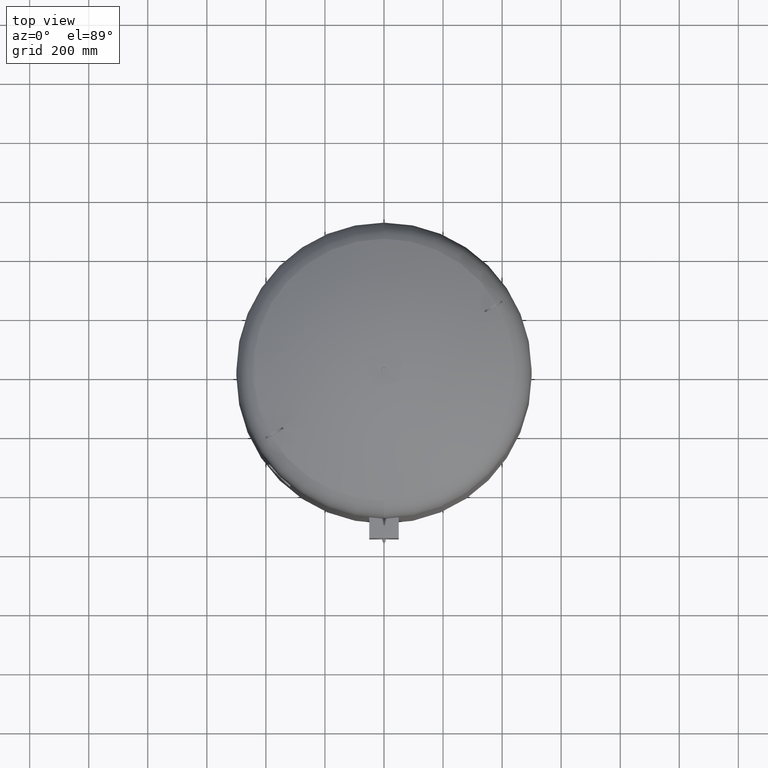
[diagram: clean part render]
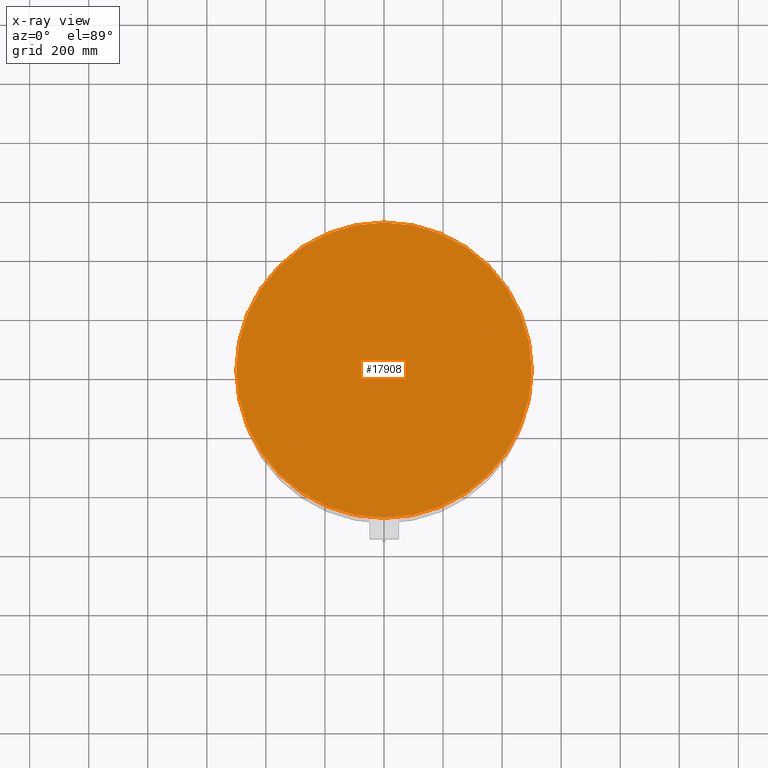
[diagram: x-ray — body ghosted, one internal face saturated and labeled with its STEP entity id]
A machine part, top view, then the same camera in x-ray: the body is ghosted and one INTERNAL B-rep face — a face not visible from any outside direction — is saturated and labeled: STEP entity #17908.
In plain terms, the highlighted planar face has unit normal (0, 0, -1).
Its self-contained STEP definition (entity closure, byte-faithful):
#17175=CARTESIAN_POINT('',(500.0,-3.995410E-014,1751.500000000000000));
#17176=VERTEX_POINT('',#17175);
#17185=CARTESIAN_POINT('',(-500.0,2.127622E-014,1751.500000000000000));
#17186=VERTEX_POINT('',#17185);
#17187=CARTESIAN_POINT('',(2.541624E-015,-3.995410E-014,1751.500000000000000));
#17188=DIRECTION('',(0.0,0.0,-1.0));
#17189=DIRECTION('',(1.0,0.0,0.0));
#17190=AXIS2_PLACEMENT_3D('',#17187,#17188,#17189);
#17191=CIRCLE('',#17190,500.0);
#17192=EDGE_CURVE('',#17186,#17176,#17191,.T.);
#17889=CARTESIAN_POINT('',(2.541624E-015,-3.995410E-014,1751.500000000000000));
#17890=DIRECTION('',(0.0,0.0,-1.0));
#17891=DIRECTION('',(1.0,0.0,0.0));
#17892=AXIS2_PLACEMENT_3D('',#17889,#17890,#17891);
#17893=CIRCLE('',#17892,500.0);
#17894=EDGE_CURVE('',#17176,#17186,#17893,.T.);
#17899=CARTESIAN_POINT('',(249.999999999999970,-3.995410E-014,1751.500000000000000));
#17900=DIRECTION('',(0.0,0.0,-1.0));
#17901=DIRECTION('',(0.0,-1.0,0.0));
#17902=AXIS2_PLACEMENT_3D('',#17899,#17900,#17901);
#17903=PLANE('',#17902);
#17904=ORIENTED_EDGE('',*,*,#17894,.T.);
#17905=ORIENTED_EDGE('',*,*,#17192,.T.);
#17906=EDGE_LOOP('',(#17904,#17905));
#17907=FACE_OUTER_BOUND('',#17906,.T.);
#17908=ADVANCED_FACE('',(#17907),#17903,.T.);